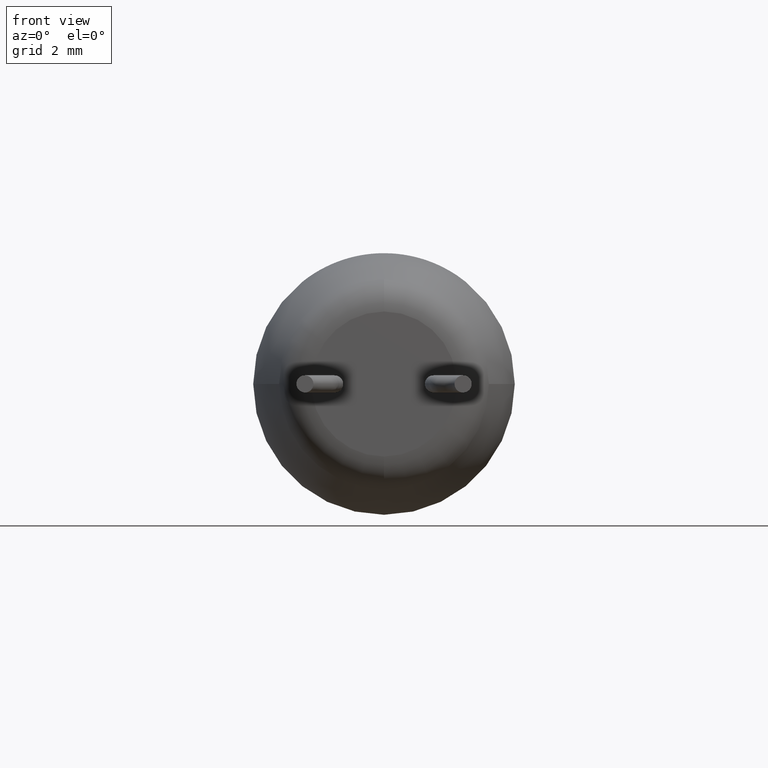
[diagram: clean part render]
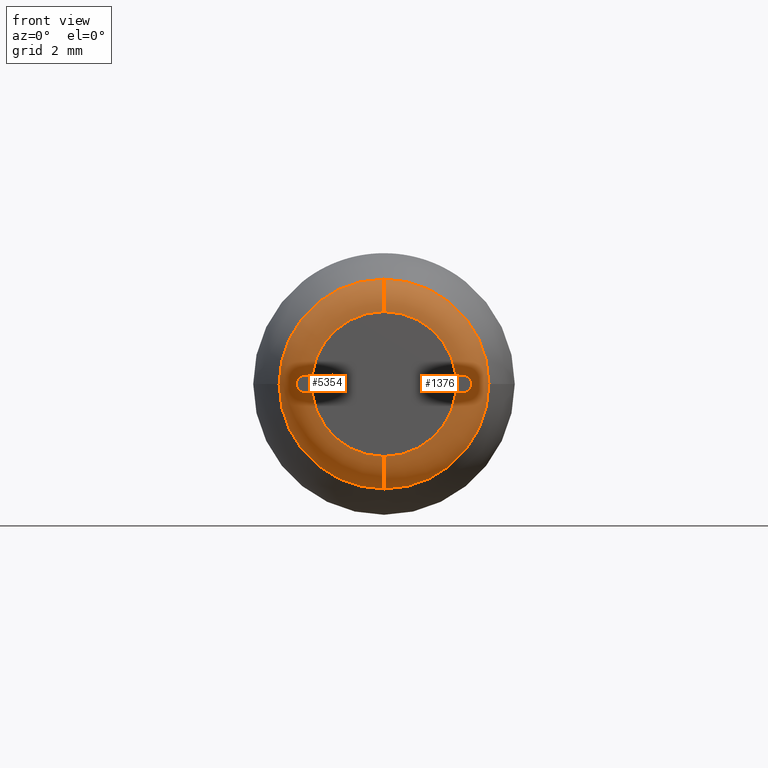
[diagram: same view with one multi-face feature highlighted, each face labeled with its STEP entity id]
A machine part, front view. The highlighted faces form ONE feature: a constant-radius fillet chain: 2 tangent blend faces with common blend radius 1.12 mm. The faces share edges in the B-rep.
Their STEP definitions:
[1] entity #5354 (Torus):
#241 = DIRECTION ( 'NONE',  ( 0.0000000000000000000, 0.0000000000000000000, 1.000000000000000000 ) ) ;
#256 = CARTESIAN_POINT ( 'NONE',  ( 0.0000000000000000000, 0.7084151299315653000, 0.0000000000000000000 ) ) ;
#315 = AXIS2_PLACEMENT_3D ( 'NONE', #3714, #1091, #319 ) ;
#319 = DIRECTION ( 'NONE',  ( 0.0000000000000000000, 0.0000000000000000000, 1.000000000000000000 ) ) ;
#421 = ORIENTED_EDGE ( 'NONE', *, *, #5477, .F. ) ;
#442 = EDGE_CURVE ( 'NONE', #4467, #5096, #2127, .T. ) ;
#496 = ORIENTED_EDGE ( 'NONE', *, *, #4572, .F. ) ;
#545 = DIRECTION ( 'NONE',  ( 1.000000000000000000, 0.0000000000000000000, -1.224646799147353200E-016 ) ) ;
#632 = DIRECTION ( 'NONE',  ( -0.0000000000000000000, -1.000000000000000000, -0.0000000000000000000 ) ) ;
#680 = EDGE_LOOP ( 'NONE', ( #496, #4170, #421, #3049, #3118 ) ) ;
#919 = AXIS2_PLACEMENT_3D ( 'NONE', #5493, #632, #241 ) ;
#1091 = DIRECTION ( 'NONE',  ( -1.000000000000000000, 0.0000000000000000000, 0.0000000000000000000 ) ) ;
#1111 = DIRECTION ( 'NONE',  ( 0.0000000000000000000, 1.000000000000000000, 0.0000000000000000000 ) ) ;
#1370 = EDGE_CURVE ( 'NONE', #4817, #2680, #2472, .T. ) ;
#1781 = FACE_OUTER_BOUND ( 'NONE', #680, .T. ) ;
#1864 = CARTESIAN_POINT ( 'NONE',  ( 0.0000000000000000000, 1.119997200000000500, 0.0000000000000000000 ) ) ;
#1885 = DIRECTION ( 'NONE',  ( -0.0000000000000000000, -1.000000000000000000, -0.0000000000000000000 ) ) ;
#1895 = AXIS2_PLACEMENT_3D ( 'NONE', #5075, #545, #4994 ) ;
#2127 = CIRCLE ( 'NONE', #4316, 3.369081478102325300 ) ;
#2304 = DIRECTION ( 'NONE',  ( 0.0000000000000000000, 0.0000000000000000000, -1.000000000000000000 ) ) ;
#2472 = CIRCLE ( 'NONE', #315, 1.119997200000000000 ) ;
#2680 = VERTEX_POINT ( 'NONE', #3533 ) ;
#2699 = CARTESIAN_POINT ( 'NONE',  ( 3.488120169603998400E-016, 0.0000000000000000000, 2.327451060148806800 ) ) ;
#2977 = CIRCLE ( 'NONE', #1895, 1.119997200000000000 ) ;
#3009 = AXIS2_PLACEMENT_3D ( 'NONE', #1864, #1885, #2304 ) ;
#3014 = TOROIDAL_SURFACE ( 'NONE', #3009, 2.327451060148806800, 1.119997200000000000 ) ;
#3049 = ORIENTED_EDGE ( 'NONE', *, *, #1370, .T. ) ;
#3118 = ORIENTED_EDGE ( 'NONE', *, *, #4446, .F. ) ;
#3335 = DIRECTION ( 'NONE',  ( 0.0000000000000000000, 1.000000000000000000, 0.0000000000000000000 ) ) ;
#3533 = CARTESIAN_POINT ( 'NONE',  ( 0.0000000000000000000, 0.0000000000000000000, -2.327451060148806800 ) ) ;
#3714 = CARTESIAN_POINT ( 'NONE',  ( 0.0000000000000000000, 1.119997200000000500, -2.327451060148806800 ) ) ;
#3763 = CARTESIAN_POINT ( 'NONE',  ( 0.0000000000000000000, 0.7084151299315653000, 0.0000000000000000000 ) ) ;
#3853 = CIRCLE ( 'NONE', #919, 2.327451060148806800 ) ;
#4170 = ORIENTED_EDGE ( 'NONE', *, *, #442, .F. ) ;
#4185 = CARTESIAN_POINT ( 'NONE',  ( 4.125934848224646600E-016, 0.7084151299315653000, 3.369081478102325300 ) ) ;
#4187 = AXIS2_PLACEMENT_3D ( 'NONE', #3763, #1111, #5111 ) ;
#4316 = AXIS2_PLACEMENT_3D ( 'NONE', #256, #3335, #5583 ) ;
#4446 = EDGE_CURVE ( 'NONE', #4529, #2680, #3853, .T. ) ;
#4467 = VERTEX_POINT ( 'NONE', #4629 ) ;
#4529 = VERTEX_POINT ( 'NONE', #2699 ) ;
#4572 = EDGE_CURVE ( 'NONE', #5096, #4529, #2977, .T. ) ;
#4629 = CARTESIAN_POINT ( 'NONE',  ( -3.369081478102325300, 0.7084151299315653000, 4.634725702321764000E-016 ) ) ;
#4817 = VERTEX_POINT ( 'NONE', #5342 ) ;
#4853 = CIRCLE ( 'NONE', #4187, 3.369081478102325300 ) ;
#4994 = DIRECTION ( 'NONE',  ( -1.224646799147353200E-016, 0.0000000000000000000, -1.000000000000000000 ) ) ;
#5075 = CARTESIAN_POINT ( 'NONE',  ( 2.850305490983350100E-016, 1.119997200000000500, 2.327451060148806800 ) ) ;
#5096 = VERTEX_POINT ( 'NONE', #4185 ) ;
#5111 = DIRECTION ( 'NONE',  ( 0.0000000000000000000, 0.0000000000000000000, -1.000000000000000000 ) ) ;
#5342 = CARTESIAN_POINT ( 'NONE',  ( 0.0000000000000000000, 0.7084151299315653000, -3.369081478102325300 ) ) ;
#5354 = ADVANCED_FACE ( 'NONE', ( #1781 ), #3014, .T. ) ;
#5477 = EDGE_CURVE ( 'NONE', #4817, #4467, #4853, .T. ) ;
#5493 = CARTESIAN_POINT ( 'NONE',  ( 0.0000000000000000000, 0.0000000000000000000, 0.0000000000000000000 ) ) ;
#5583 = DIRECTION ( 'NONE',  ( 0.0000000000000000000, 0.0000000000000000000, -1.000000000000000000 ) ) ;
[2] entity #1376 (Torus):
#314 = DIRECTION ( 'NONE',  ( 0.0000000000000000000, 0.0000000000000000000, -1.000000000000000000 ) ) ;
#315 = AXIS2_PLACEMENT_3D ( 'NONE', #3714, #1091, #319 ) ;
#319 = DIRECTION ( 'NONE',  ( 0.0000000000000000000, 0.0000000000000000000, 1.000000000000000000 ) ) ;
#363 = DIRECTION ( 'NONE',  ( 0.0000000000000000000, 0.0000000000000000000, -1.000000000000000000 ) ) ;
#406 = ORIENTED_EDGE ( 'NONE', *, *, #1370, .F. ) ;
#545 = DIRECTION ( 'NONE',  ( 1.000000000000000000, 0.0000000000000000000, -1.224646799147353200E-016 ) ) ;
#647 = CARTESIAN_POINT ( 'NONE',  ( 0.0000000000000000000, 1.119997200000000500, 0.0000000000000000000 ) ) ;
#698 = DIRECTION ( 'NONE',  ( 0.0000000000000000000, 0.0000000000000000000, -1.000000000000000000 ) ) ;
#816 = ORIENTED_EDGE ( 'NONE', *, *, #4572, .T. ) ;
#1091 = DIRECTION ( 'NONE',  ( -1.000000000000000000, 0.0000000000000000000, 0.0000000000000000000 ) ) ;
#1099 = ORIENTED_EDGE ( 'NONE', *, *, #2412, .F. ) ;
#1132 = DIRECTION ( 'NONE',  ( 0.0000000000000000000, 1.000000000000000000, 0.0000000000000000000 ) ) ;
#1136 = AXIS2_PLACEMENT_3D ( 'NONE', #647, #2942, #363 ) ;
#1370 = EDGE_CURVE ( 'NONE', #4817, #2680, #2472, .T. ) ;
#1376 = ADVANCED_FACE ( 'NONE', ( #4085 ), #4515, .T. ) ;
#1544 = CARTESIAN_POINT ( 'NONE',  ( 0.0000000000000000000, 0.7084151299315653000, 0.0000000000000000000 ) ) ;
#1726 = AXIS2_PLACEMENT_3D ( 'NONE', #1544, #1132, #698 ) ;
#1895 = AXIS2_PLACEMENT_3D ( 'NONE', #5075, #545, #4994 ) ;
#1939 = VERTEX_POINT ( 'NONE', #5149 ) ;
#2293 = ORIENTED_EDGE ( 'NONE', *, *, #5428, .F. ) ;
#2412 = EDGE_CURVE ( 'NONE', #1939, #4817, #4719, .T. ) ;
#2472 = CIRCLE ( 'NONE', #315, 1.119997200000000000 ) ;
#2680 = VERTEX_POINT ( 'NONE', #3533 ) ;
#2699 = CARTESIAN_POINT ( 'NONE',  ( 3.488120169603998400E-016, 0.0000000000000000000, 2.327451060148806800 ) ) ;
#2894 = DIRECTION ( 'NONE',  ( 0.0000000000000000000, 1.000000000000000000, 0.0000000000000000000 ) ) ;
#2942 = DIRECTION ( 'NONE',  ( -0.0000000000000000000, -1.000000000000000000, -0.0000000000000000000 ) ) ;
#2977 = CIRCLE ( 'NONE', #1895, 1.119997200000000000 ) ;
#3022 = AXIS2_PLACEMENT_3D ( 'NONE', #5129, #2894, #314 ) ;
#3036 = AXIS2_PLACEMENT_3D ( 'NONE', #5084, #4177, #5065 ) ;
#3533 = CARTESIAN_POINT ( 'NONE',  ( 0.0000000000000000000, 0.0000000000000000000, -2.327451060148806800 ) ) ;
#3714 = CARTESIAN_POINT ( 'NONE',  ( 0.0000000000000000000, 1.119997200000000500, -2.327451060148806800 ) ) ;
#4085 = FACE_OUTER_BOUND ( 'NONE', #5226, .T. ) ;
#4177 = DIRECTION ( 'NONE',  ( -0.0000000000000000000, -1.000000000000000000, -0.0000000000000000000 ) ) ;
#4185 = CARTESIAN_POINT ( 'NONE',  ( 4.125934848224646600E-016, 0.7084151299315653000, 3.369081478102325300 ) ) ;
#4515 = TOROIDAL_SURFACE ( 'NONE', #1136, 2.327451060148806800, 1.119997200000000000 ) ;
#4529 = VERTEX_POINT ( 'NONE', #2699 ) ;
#4572 = EDGE_CURVE ( 'NONE', #5096, #4529, #2977, .T. ) ;
#4711 = ORIENTED_EDGE ( 'NONE', *, *, #5589, .F. ) ;
#4719 = CIRCLE ( 'NONE', #3022, 3.369081478102325300 ) ;
#4788 = CIRCLE ( 'NONE', #1726, 3.369081478102325300 ) ;
#4817 = VERTEX_POINT ( 'NONE', #5342 ) ;
#4994 = DIRECTION ( 'NONE',  ( -1.224646799147353200E-016, 0.0000000000000000000, -1.000000000000000000 ) ) ;
#5065 = DIRECTION ( 'NONE',  ( 0.0000000000000000000, 0.0000000000000000000, 1.000000000000000000 ) ) ;
#5075 = CARTESIAN_POINT ( 'NONE',  ( 2.850305490983350100E-016, 1.119997200000000500, 2.327451060148806800 ) ) ;
#5084 = CARTESIAN_POINT ( 'NONE',  ( 0.0000000000000000000, 0.0000000000000000000, 0.0000000000000000000 ) ) ;
#5096 = VERTEX_POINT ( 'NONE', #4185 ) ;
#5129 = CARTESIAN_POINT ( 'NONE',  ( 0.0000000000000000000, 0.7084151299315653000, 0.0000000000000000000 ) ) ;
#5149 = CARTESIAN_POINT ( 'NONE',  ( 3.369081478102325300, 0.7084151299315653000, 0.0000000000000000000 ) ) ;
#5226 = EDGE_LOOP ( 'NONE', ( #4711, #816, #2293, #406, #1099 ) ) ;
#5342 = CARTESIAN_POINT ( 'NONE',  ( 0.0000000000000000000, 0.7084151299315653000, -3.369081478102325300 ) ) ;
#5428 = EDGE_CURVE ( 'NONE', #2680, #4529, #5708, .T. ) ;
#5589 = EDGE_CURVE ( 'NONE', #5096, #1939, #4788, .T. ) ;
#5708 = CIRCLE ( 'NONE', #3036, 2.327451060148806800 ) ;